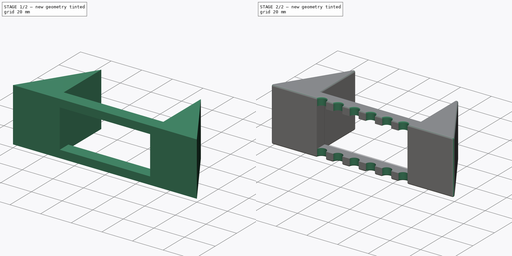
[diagram: build sequence overview — one tinted view per stage of 2, left to right]
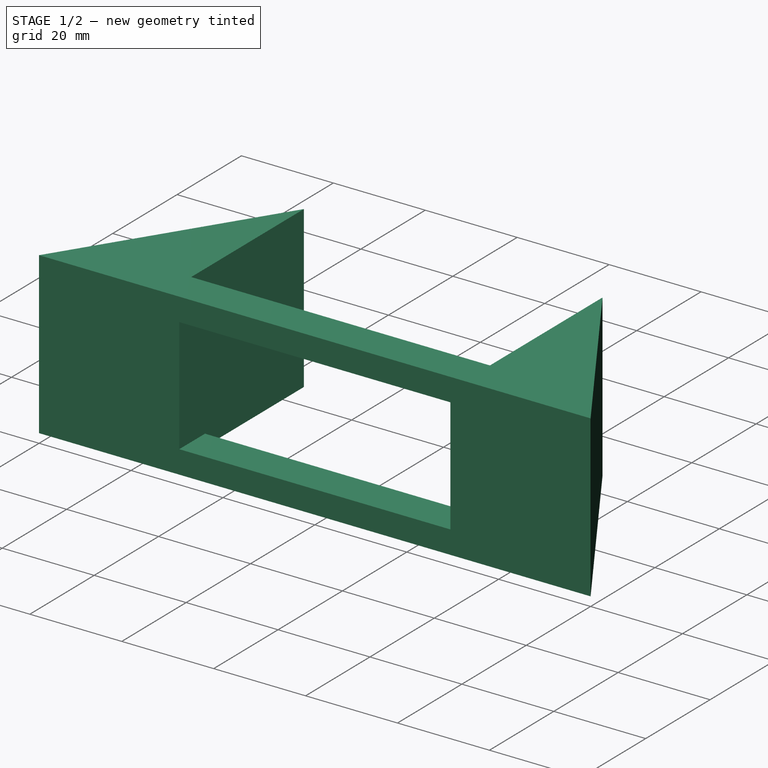
[diagram: stage 1 of 2 — iso view after this stage's code; geometry added in this stage tinted green]
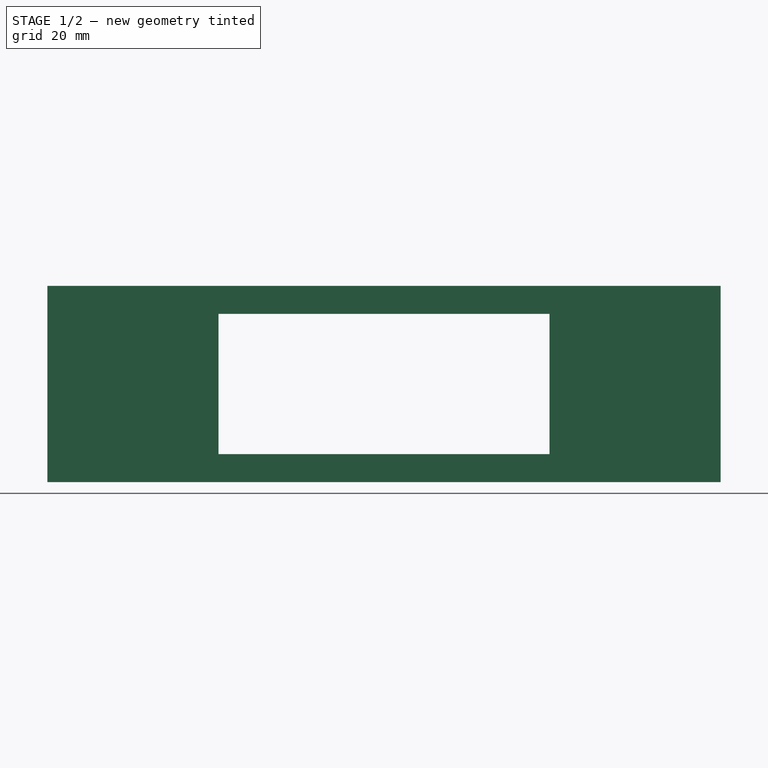
[diagram: stage 1 of 2 — front view after this stage's code; geometry added in this stage tinted green]
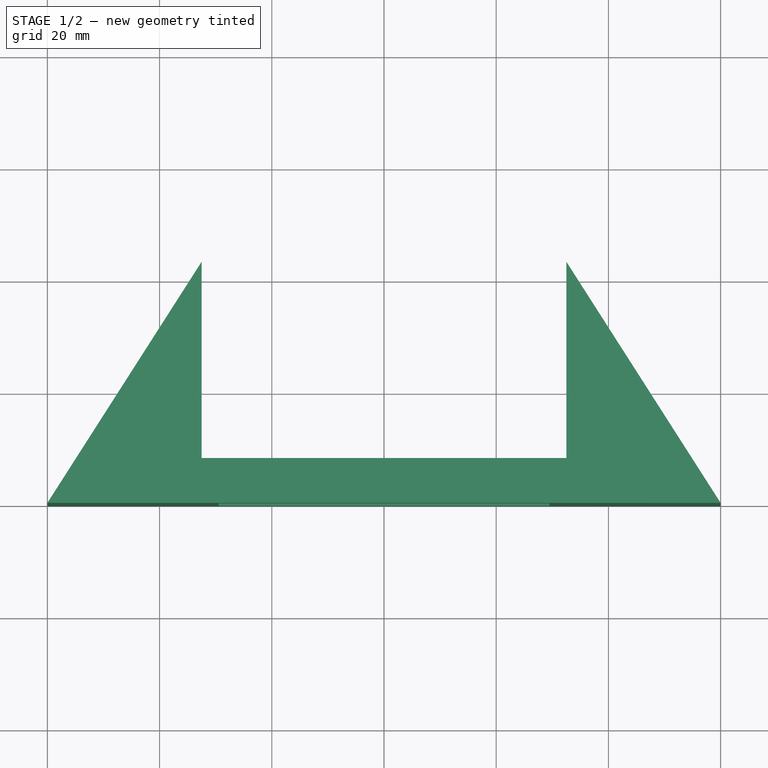
[diagram: stage 1 of 2 — top view after this stage's code; geometry added in this stage tinted green]
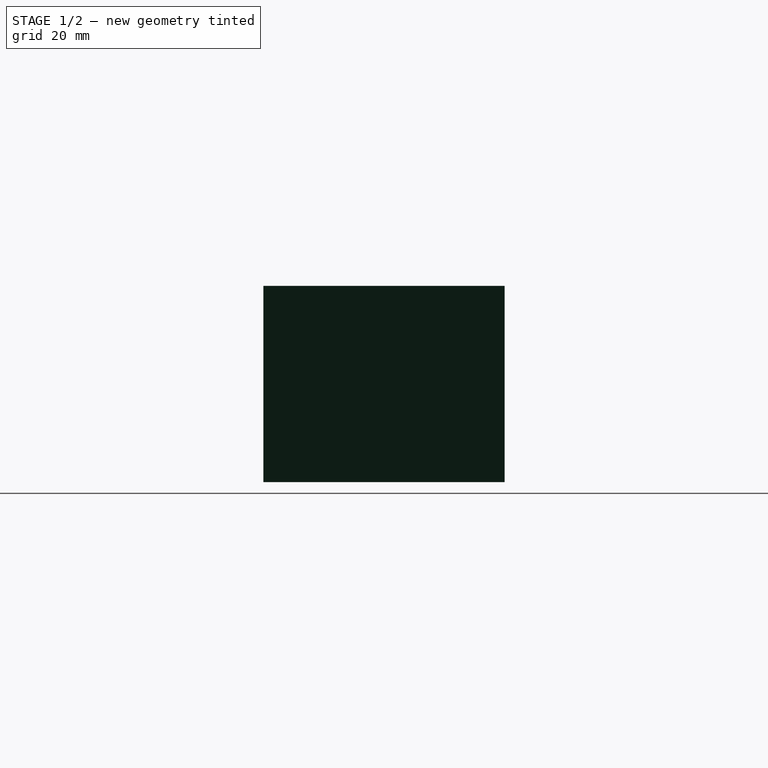
[diagram: stage 1 of 2 — right view after this stage's code; geometry added in this stage tinted green]
FCSTD DOCUMENT  (FreeCAD 0.18.3R)
Label: RouterPCStand
License: All rights reserved
LicenseURL: http://en.wikipedia.org/wiki/All_rights_reserved
objects: Sketcher::SketchObject×3, PartDesign::Pocket×2, PartDesign::Pad×1, PartDesign::Fillet×1, PartDesign::Body×1, App::Part×1
note: 11 computed .brp shape members not serialized (recipe doc carries the construction recipe); baked Part::Feature solids carry a one-line shape summary decoded from their .brp

FEATURE [Sketcher::SketchObject] Sketch
  MapMode = 5
  Support = -> [XY_Plane001]
  sketch-geometry (7):
    g0: LineSegment StartX=-32.5 StartY=43 StartZ=0 EndX=-32.5 EndY=8 EndZ=0
    g1: LineSegment StartX=-32.5 StartY=8 StartZ=0 EndX=32.5 EndY=8 EndZ=0
    g2: LineSegment StartX=32.5 StartY=8 StartZ=0 EndX=32.5 EndY=43 EndZ=0
    g3: LineSegment StartX=32.5 StartY=43 StartZ=0 EndX=60 EndY=0 EndZ=0
    g4: LineSegment StartX=60 StartY=0 StartZ=0 EndX=-60 EndY=0 EndZ=0
    g5: LineSegment StartX=-60 StartY=0 StartZ=0 EndX=-32.5 EndY=43 EndZ=0
    g6: LineSegment [constr] StartX=-32.5 StartY=43 StartZ=0 EndX=32.5 EndY=43 EndZ=0
  constraints (19):
    c: Vertical(g0)
    c: Coincident(g0,g1)
    c: Horizontal(g1)
    c: Coincident(g1,g2)
    c: Vertical(g2)
    c: Coincident(g2,g3)
    c: Coincident(g3,g4)
    c: Horizontal(g4)
    c: Coincident(g4,g5)
    c: Coincident(g5,g0)
    c: Coincident(g6,g0)
    c: Coincident(g6,g2)
    c: Horizontal(g6)
    c: Equal(g5,g3)
    c: DistanceX(g4,g4) = 120
    c: DistanceX(g6,g6) = 65  'Gap'
    c: DistanceY(g4,g0) = 8
    c: DistanceY(g0,g0) = 35
    c: Symmetric(g4,g3,g-1)
FEATURE [PartDesign::Pad] Pad
  Length = 35
  Length2 = 100
  Profile = -> Sketch
  Type = 0
FEATURE [Sketcher::SketchObject] Sketch001
  MapMode = 5
  Placement = pos=(0,0,0) rot=(1,0,0;1.5708rad)
  Support = -> [XZ_Plane001]
  expr: Constraints[15] = Pad.Length
  expr: Constraints.HoleWidth = Sketch.Constraints.Gap - 6mm
  sketch-geometry (6):
    g0: LineSegment StartX=-29.5 StartY=30 StartZ=0 EndX=29.5 EndY=30 EndZ=0
    g1: LineSegment StartX=29.5 StartY=30 StartZ=0 EndX=29.5 EndY=5 EndZ=0
    g2: LineSegment StartX=29.5 StartY=5 StartZ=0 EndX=-29.5 EndY=5 EndZ=0
    g3: LineSegment StartX=-29.5 StartY=5 StartZ=0 EndX=-29.5 EndY=30 EndZ=0
    g4: LineSegment [constr] StartX=-29.5 StartY=5 StartZ=0 EndX=-29.5 EndY=0 EndZ=0
    g5: LineSegment [constr] StartX=-29.5 StartY=30 StartZ=0 EndX=-29.5 EndY=35 EndZ=0
  constraints (17):
    c: Coincident(g0,g1)
    c: Coincident(g1,g2)
    c: Coincident(g2,g3)
    c: Coincident(g3,g0)
    c: Horizontal(g2)
    c: Vertical(g1)
    c: Vertical(g3)
    c: Symmetric(g0,g0,g-2)
    c: DistanceX(g0,g0) = 59  'HoleWidth'
    c: Coincident(g4,g2)
    c: PointOnObject(g4,g-1)
    c: Vertical(g4)
    c: Coincident(g5,g0)
    c: Vertical(g5)
    c: Equal(g5,g4)
    c: DistanceY(g4,g5) = 35
    c: DistanceY(g4,g4) = 5
FEATURE [PartDesign::Pocket] Pocket
  BaseFeature = -> Pad
  Length = 5
  Length2 = 100
  Profile = -> Sketch001
  Type = 1
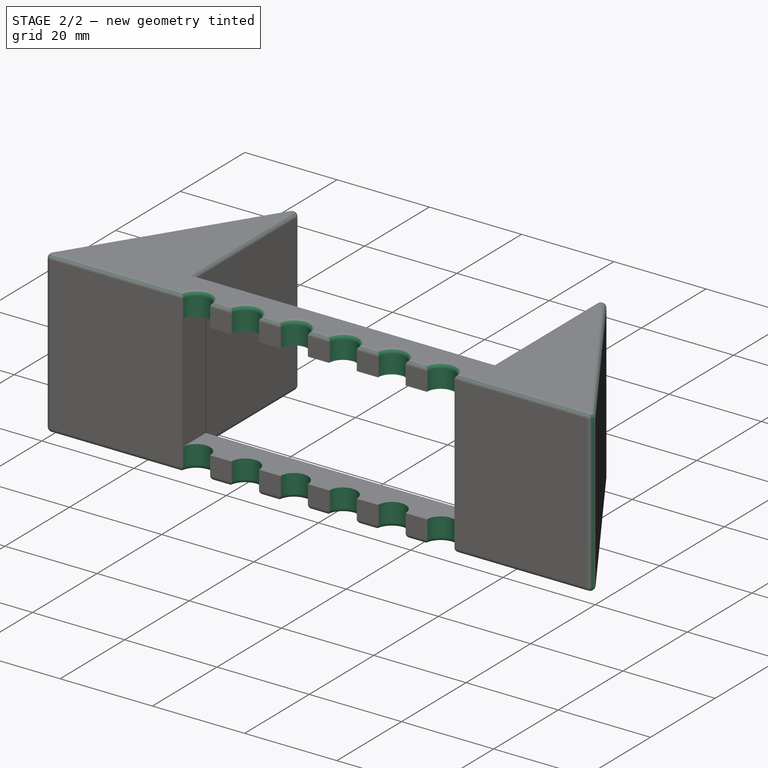
[diagram: stage 2 of 2 — iso view after this stage's code; geometry added in this stage tinted green]
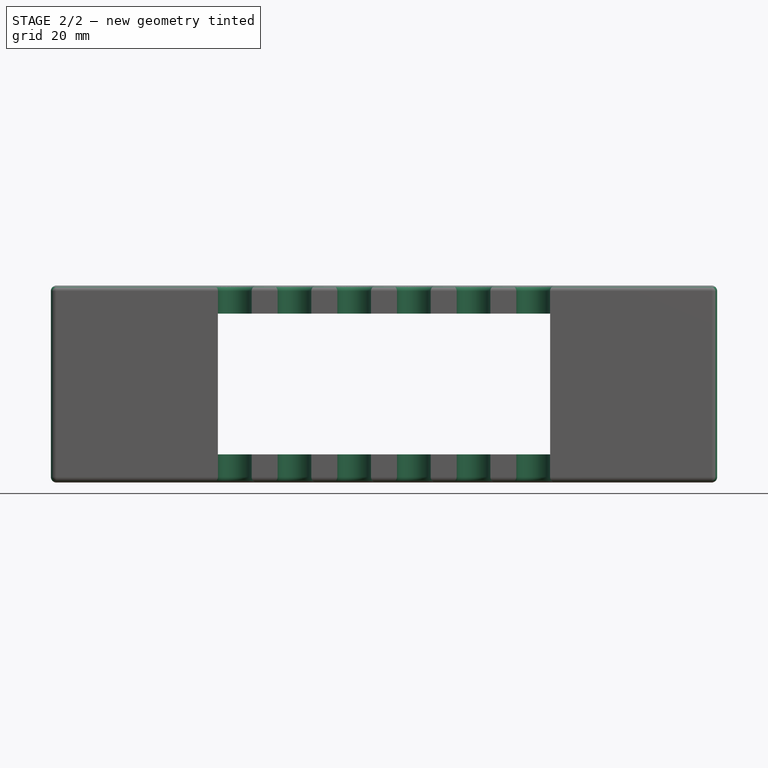
[diagram: stage 2 of 2 — front view after this stage's code; geometry added in this stage tinted green]
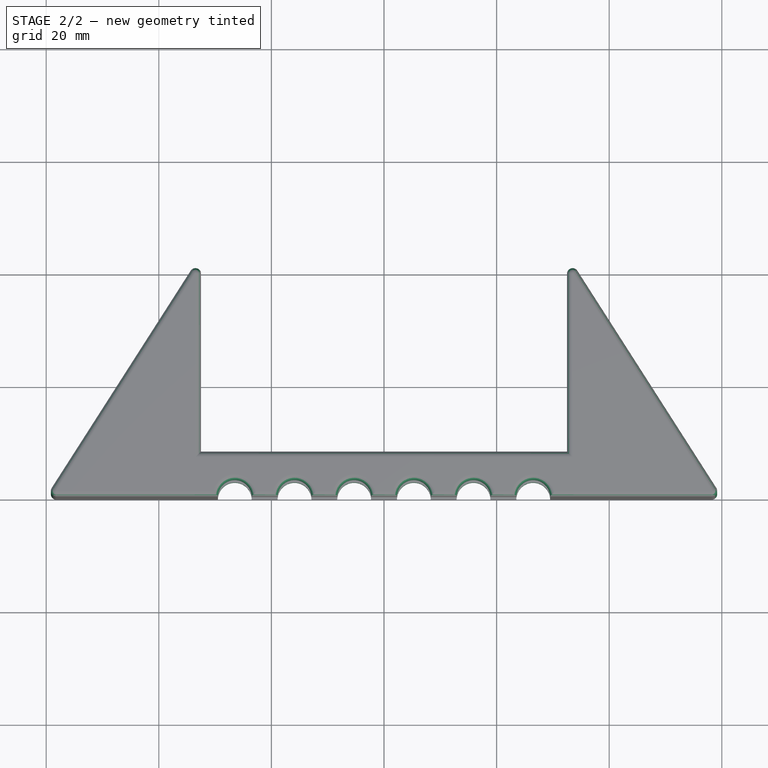
[diagram: stage 2 of 2 — top view after this stage's code; geometry added in this stage tinted green]
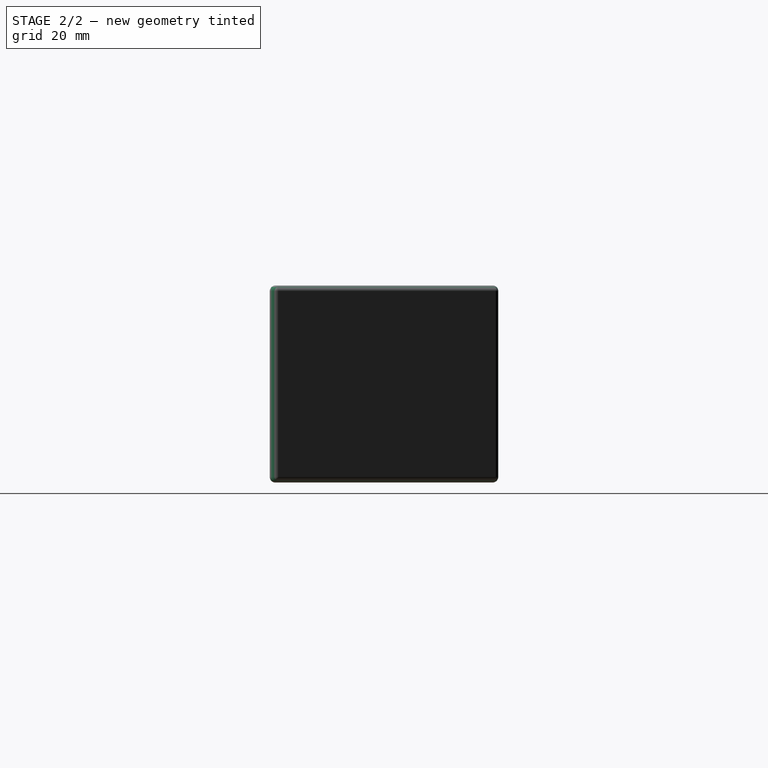
[diagram: stage 2 of 2 — right view after this stage's code; geometry added in this stage tinted green]
FEATURE [Sketcher::SketchObject] Sketch002
  MapMode = 5
  Support = -> [XY_Plane001]
  expr: Constraints[28] = Sketch001.Constraints.HoleWidth
  sketch-geometry (14):
    g0: Circle CenterX=-26.5 CenterY=0 CenterZ=0 NormalX=0 NormalY=0 NormalZ=1 AngleXU=0 Radius=3
    g1: Circle CenterX=-15.9 CenterY=0 CenterZ=0 NormalX=0 NormalY=0 NormalZ=1 AngleXU=0 Radius=3
    g2: Circle CenterX=-5.3 CenterY=0 CenterZ=0 NormalX=0 NormalY=0 NormalZ=1 AngleXU=0 Radius=3
    g3: Circle CenterX=5.3 CenterY=0 CenterZ=0 NormalX=0 NormalY=0 NormalZ=1 AngleXU=0 Radius=3
    g4: Circle CenterX=15.9 CenterY=0 CenterZ=0 NormalX=0 NormalY=0 NormalZ=1 AngleXU=0 Radius=3
    g5: Circle CenterX=26.5 CenterY=0 CenterZ=0 NormalX=0 NormalY=0 NormalZ=1 AngleXU=0 Radius=3
    g6: LineSegment [constr] StartX=-26.5 StartY=0 StartZ=0 EndX=-15.9 EndY=0 EndZ=0
    g7: LineSegment [constr] StartX=-15.9 StartY=0 StartZ=0 EndX=-5.3 EndY=0 EndZ=0
    g8: LineSegment [constr] StartX=-5.3 StartY=0 StartZ=0 EndX=5.3 EndY=0 EndZ=0
    g9: LineSegment [constr] StartX=5.3 StartY=0 StartZ=0 EndX=15.9 EndY=0 EndZ=0
    g10: LineSegment [constr] StartX=15.9 StartY=0 StartZ=0 EndX=26.5 EndY=0 EndZ=0
    g11: GeomPoint X=-29.5 Y=0 Z=0
    g12: GeomPoint X=29.5 Y=0 Z=0
    g13: LineSegment [constr] StartX=-29.5 StartY=0 StartZ=0 EndX=-29.5 EndY=0 EndZ=0
  constraints (33):
    c: PointOnObject(g0,g-1)
    c: Radius(g0) = 3
    c: PointOnObject(g1,g-1)
    c: PointOnObject(g2,g-1)
    c: PointOnObject(g4,g-1)
    c: PointOnObject(g5,g-1)
    c: Equal(g0,g1)
    c: Equal(g1,g2)
    c: Equal(g2,g3)
    c: Equal(g3,g4)
    c: Equal(g4,g5)
    c: Coincident(g6,g0)
    c: Coincident(g6,g1)
    c: Coincident(g7,g1)
    c: Coincident(g7,g2)
    c: Coincident(g8,g2)
    c: Coincident(g8,g3)
    c: Coincident(g9,g3)
    c: Coincident(g9,g4)
    c: Coincident(g10,g5)
    c: Equal(g6,g7)
    c: Equal(g7,g8)
    c: Equal(g8,g9)
    c: Equal(g9,g10)
    c: Coincident(g4,g10)
    c: Symmetric(g2,g3,g-2)
    c: PointOnObject(g11,g-1)
    c: Symmetric(g12,g11,g-2)
    c: DistanceX(g11,g12) = 59
    c: Coincident(g13,g11)
    c: PointOnObject(g13,g0)
    c: Horizontal(g13)
    c: DistanceX(g13,g13) = 0
FEATURE [PartDesign::Pocket] Pocket001
  BaseFeature = -> Pocket
  Length = 5
  Length2 = 100
  Profile = -> Sketch002
  Reversed = true
  Type = 1
FEATURE [PartDesign::Fillet] Fillet
  Base = -> Pocket001 [Face2,Face24,Face4,Face5,Edge13,Edge14,Edge12,Edge11]
  BaseFeature = -> Pocket001
  Radius = 1
FEATURE [PartDesign::Body] Body
  Group = -> [Sketch,Pad,Sketch001,Pocket,Sketch002,Pocket001,Fillet]
  Origin = -> Origin001
  Tip = -> Fillet
FEATURE [App::Part] Part
  Group = -> [Body]
  Origin = -> Origin
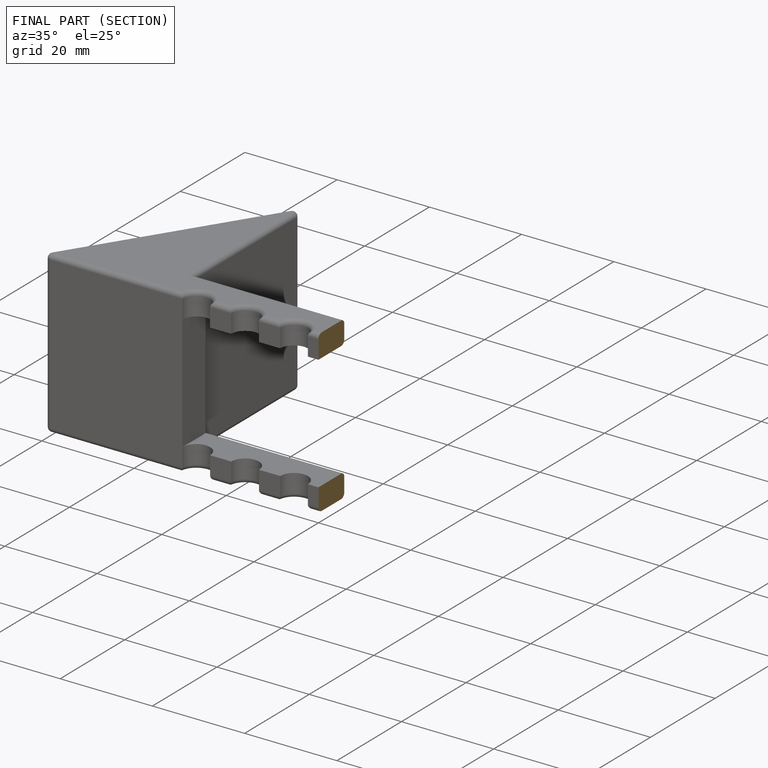
[diagram: finished part — half-section view (interior)]
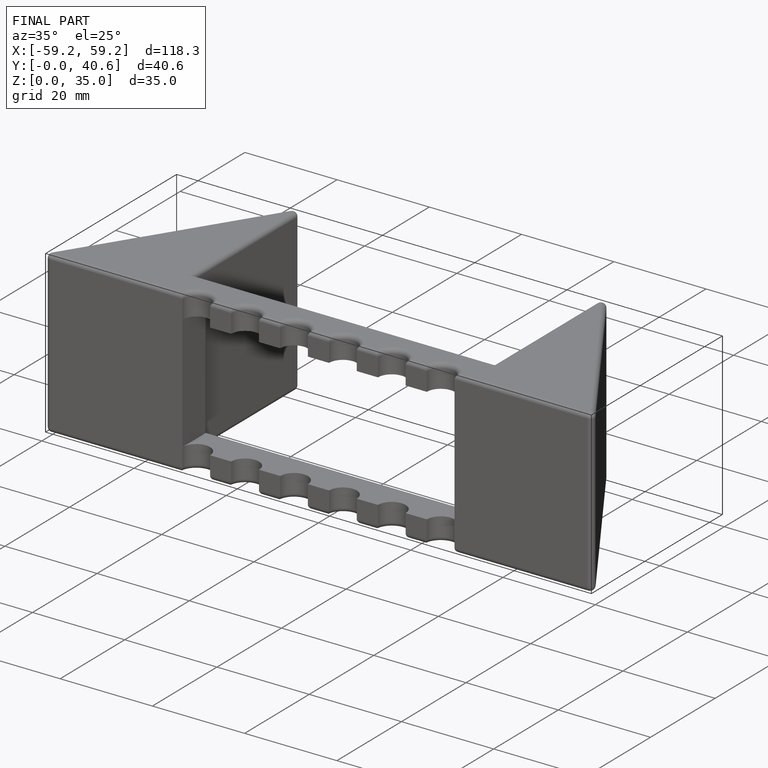
[diagram: finished part — iso view with bounding-box wireframe]
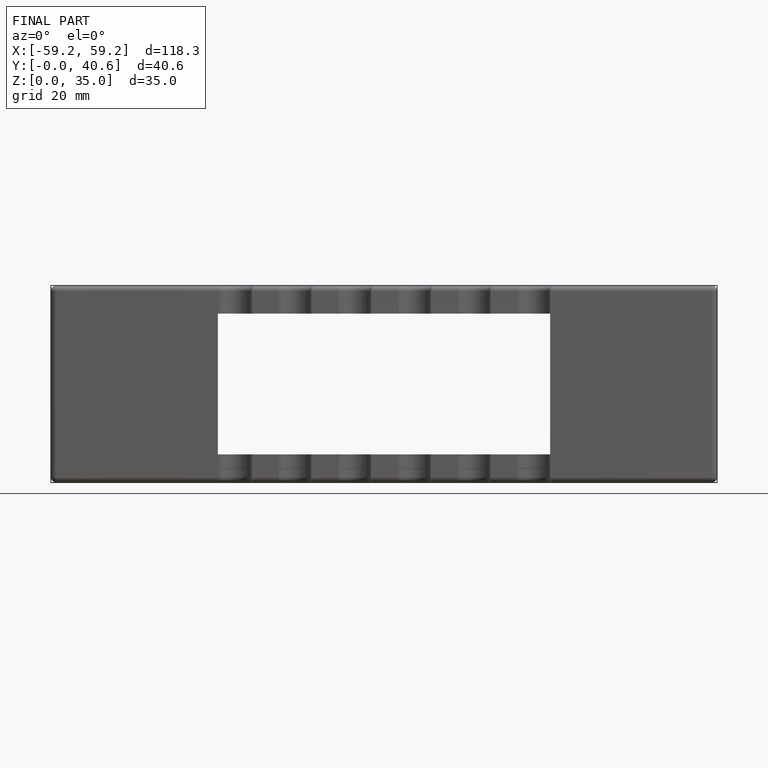
[diagram: finished part — front view with bounding-box wireframe]
